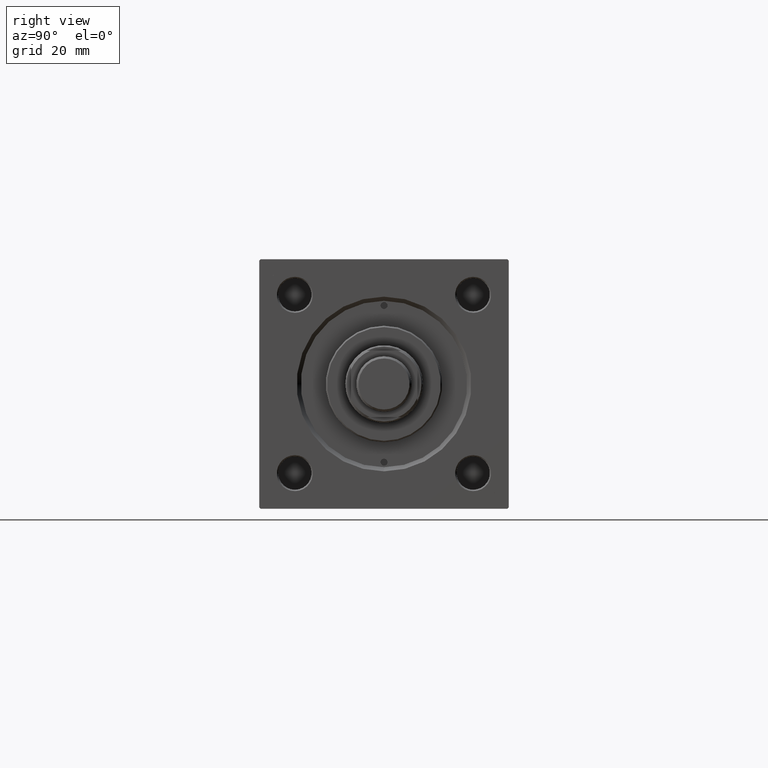
[diagram: clean part render]
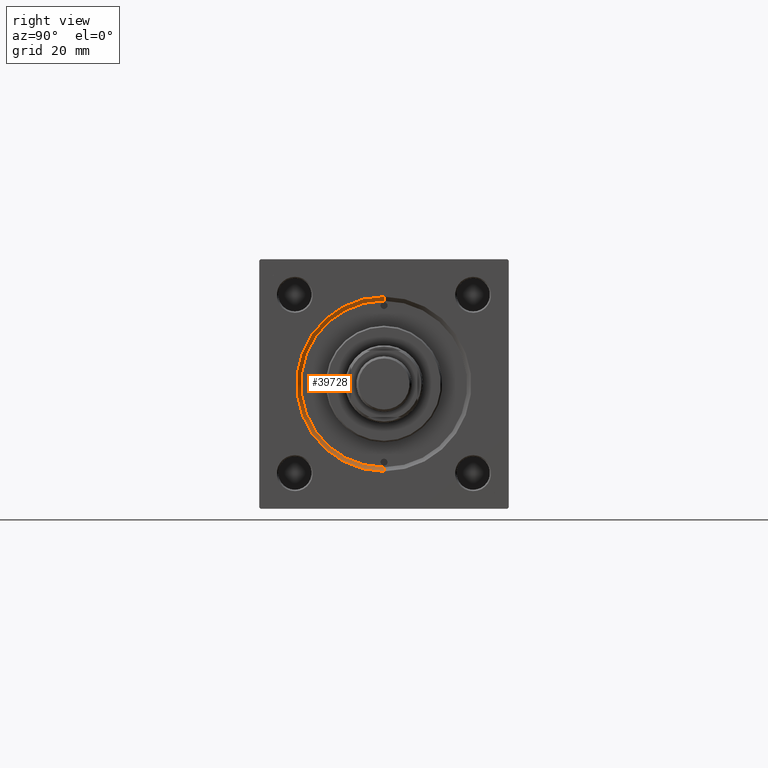
[diagram: same view with one face highlighted and labeled with its STEP entity id]
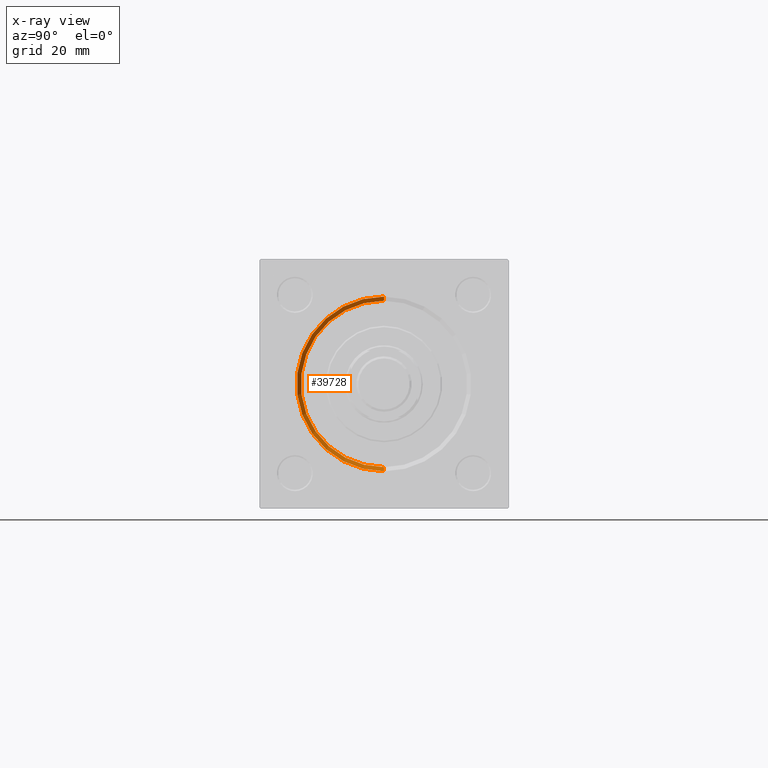
[diagram: x-ray of the same camera — body ghosted, the highlighted face saturated]
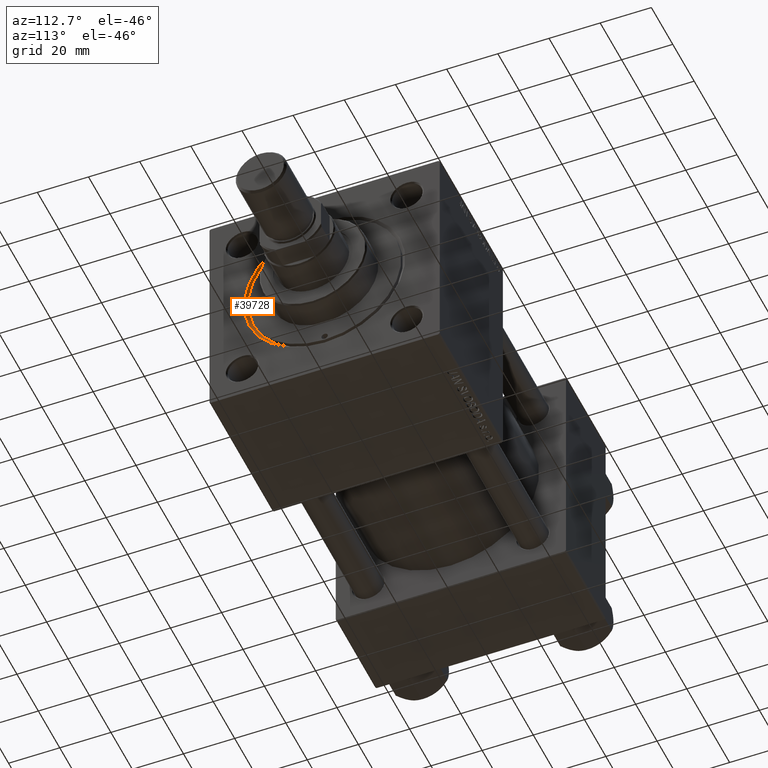
[diagram: same view with one face highlighted and labeled with its STEP entity id]
A machine part, right view. The second image highlights one B-rep face of the part: STEP entity #39728.
The next image is the same camera in x-ray: the body ghosted, the highlighted face saturated — about 0% of this face is hidden behind the body in this view.
A second angle (auxiliary view) of the same face is appended — the face is thin or edge-on in the first view.
In plain terms, the highlighted conical surface has half-angle 45 deg.
Its self-contained STEP definition (entity closure, byte-faithful):
#922 = VECTOR ( 'NONE', #42631, 1000.000000000000114 ) ;
#1379 = EDGE_LOOP ( 'NONE', ( #41926, #36819, #19016, #10925 ) ) ;
#2837 = DIRECTION ( 'NONE',  ( 0.7071067811865474617, 8.659560562354932858E-17, 0.7071067811865474617 ) ) ;
#3075 = LINE ( 'NONE', #46745, #922 ) ;
#3161 = EDGE_CURVE ( 'NONE', #35526, #50804, #30570, .T. ) ;
#3972 = CIRCLE ( 'NONE', #39210, 31.50000000000000000 ) ;
#5259 = FACE_OUTER_BOUND ( 'NONE', #1379, .T. ) ;
#7290 = DIRECTION ( 'NONE',  ( 0.000000000000000000, 0.000000000000000000, -1.000000000000000000 ) ) ;
#7679 = VERTEX_POINT ( 'NONE', #48903 ) ;
#9065 = CARTESIAN_POINT ( 'NONE',  ( 153.5000000000000000, 3.673940397442059178E-15, 30.00000000000000000 ) ) ;
#9392 = CONICAL_SURFACE ( 'NONE', #45483, 30.00000000000000000, 0.7853981633974482790 ) ;
#10925 = ORIENTED_EDGE ( 'NONE', *, *, #29149, .F. ) ;
#10985 = DIRECTION ( 'NONE',  ( 0.000000000000000000, 0.000000000000000000, 1.000000000000000000 ) ) ;
#12867 = VERTEX_POINT ( 'NONE', #33879 ) ;
#14584 = DIRECTION ( 'NONE',  ( -1.000000000000000000, -0.000000000000000000, -0.000000000000000000 ) ) ;
#15762 = AXIS2_PLACEMENT_3D ( 'NONE', #36340, #24535, #17085 ) ;
#17085 = DIRECTION ( 'NONE',  ( 0.000000000000000000, 0.000000000000000000, 1.000000000000000000 ) ) ;
#18598 = DIRECTION ( 'NONE',  ( 1.000000000000000000, 0.000000000000000000, 0.000000000000000000 ) ) ;
#19016 = ORIENTED_EDGE ( 'NONE', *, *, #20660, .F. ) ;
#20660 = EDGE_CURVE ( 'NONE', #7679, #50804, #3972, .T. ) ;
#24535 = DIRECTION ( 'NONE',  ( 1.000000000000000000, 0.000000000000000000, 0.000000000000000000 ) ) ;
#25907 = CARTESIAN_POINT ( 'NONE',  ( 155.0000000000000000, 0.000000000000000000, 0.000000000000000000 ) ) ;
#29149 = EDGE_CURVE ( 'NONE', #12867, #7679, #3075, .T. ) ;
#30570 = LINE ( 'NONE', #38021, #49459 ) ;
#33879 = CARTESIAN_POINT ( 'NONE',  ( 153.5000000000000000, 0.000000000000000000, -30.00000000000000000 ) ) ;
#34309 = EDGE_CURVE ( 'NONE', #35526, #12867, #41171, .T. ) ;
#35526 = VERTEX_POINT ( 'NONE', #9065 ) ;
#36340 = CARTESIAN_POINT ( 'NONE',  ( 153.5000000000000000, 0.000000000000000000, 0.000000000000000000 ) ) ;
#36588 = CARTESIAN_POINT ( 'NONE',  ( 153.5000000000000000, 0.000000000000000000, 0.000000000000000000 ) ) ;
#36819 = ORIENTED_EDGE ( 'NONE', *, *, #3161, .T. ) ;
#38021 = CARTESIAN_POINT ( 'NONE',  ( 153.5000000000000000, 3.673940397442059178E-15, 30.00000000000000000 ) ) ;
#38282 = CARTESIAN_POINT ( 'NONE',  ( 155.0000000000000000, 3.857637417314162689E-15, 31.50000000000000000 ) ) ;
#39210 = AXIS2_PLACEMENT_3D ( 'NONE', #25907, #14584, #10985 ) ;
#39728 = ADVANCED_FACE ( 'NONE', ( #5259 ), #9392, .F. ) ;
#41171 = CIRCLE ( 'NONE', #15762, 30.00000000000000000 ) ;
#41926 = ORIENTED_EDGE ( 'NONE', *, *, #34309, .F. ) ;
#42631 = DIRECTION ( 'NONE',  ( 0.7071067811865474617, 0.000000000000000000, -0.7071067811865474617 ) ) ;
#45483 = AXIS2_PLACEMENT_3D ( 'NONE', #36588, #18598, #7290 ) ;
#46745 = CARTESIAN_POINT ( 'NONE',  ( 153.5000000000000000, 0.000000000000000000, -30.00000000000000000 ) ) ;
#48903 = CARTESIAN_POINT ( 'NONE',  ( 155.0000000000000000, 0.000000000000000000, -31.50000000000000000 ) ) ;
#49459 = VECTOR ( 'NONE', #2837, 1000.000000000000114 ) ;
#50804 = VERTEX_POINT ( 'NONE', #38282 ) ;